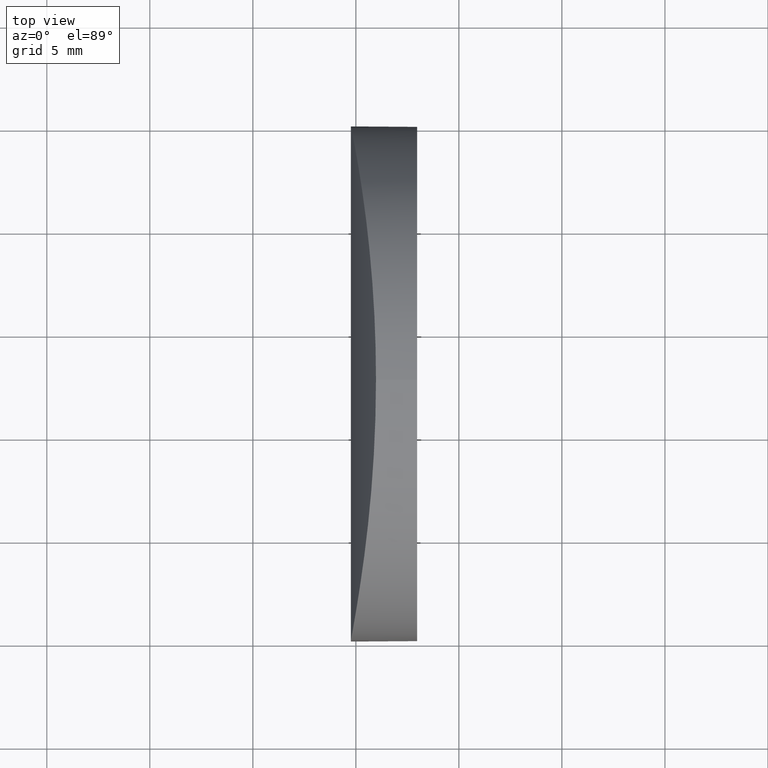
[diagram: clean part render]
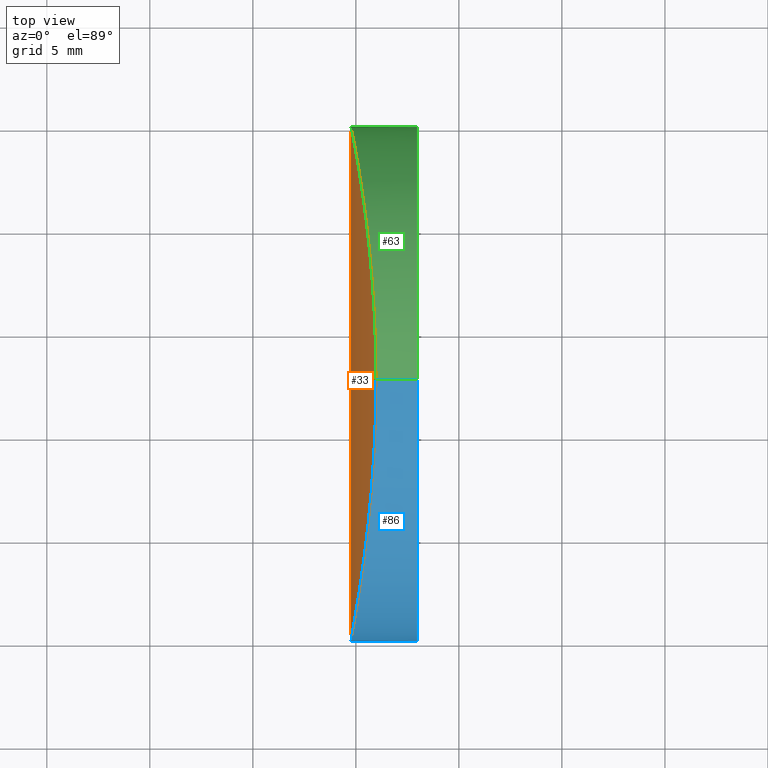
[diagram: same view with three faces highlighted in distinct colors, each labeled with its STEP entity id]
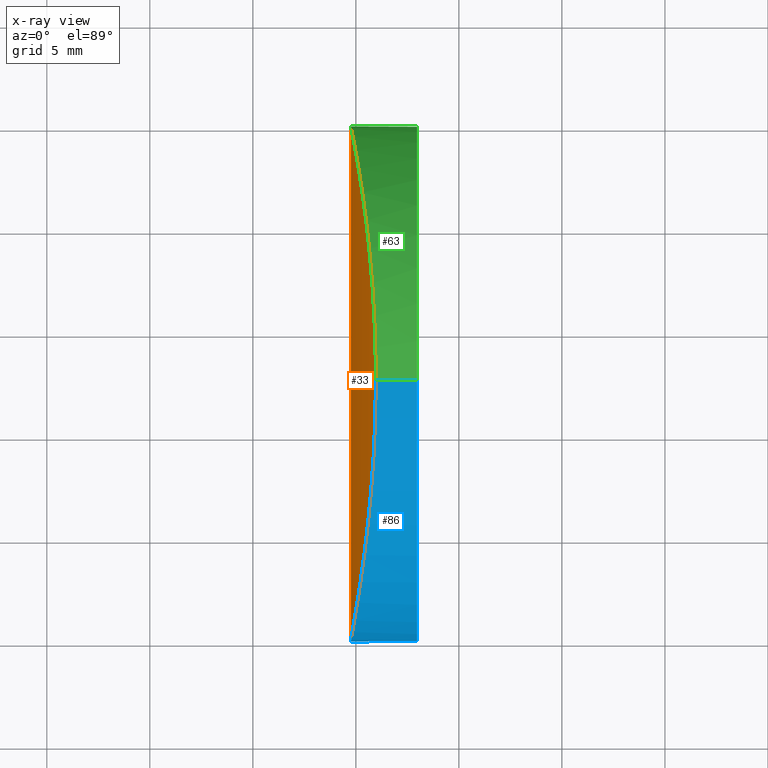
[diagram: x-ray of the same camera — body ghosted, the three highlighted faces saturated]
A machine part, top view with three faces highlighted in distinct colors.
The next image is the same camera in x-ray (body ghosted, the three faces saturated) — at least one of them is partly hidden behind the body in this view.
Their STEP definitions:

[orange] entity #33 — the highlighted cylindrical surface (partial cylindrical patch) has radius 64.6 mm, axis along (-0, -1, -0).
#1 = CARTESIAN_POINT ( 'NONE',  ( -59.02389316582319600, 12.50000000000000200, 12.50000000000002100 ) ) ;
#2 = CARTESIAN_POINT ( 'NONE',  ( -59.26164959724778200, 6.953611480355411000, 11.23198719066334800 ) ) ;
#3 = CARTESIAN_POINT ( 'NONE',  ( -60.11944846965648300, 24.33573582276013500, -4.041388824887324200 ) ) ;
#7 = CARTESIAN_POINT ( 'NONE',  ( -59.17619296434610700, 16.91254268337160500, -11.70243442865199900 ) ) ;
#8 = CARTESIAN_POINT ( 'NONE',  ( -60.03817596153278700, 1.114876474704032900, 5.176325032583973100 ) ) ;
#9 = CARTESIAN_POINT ( 'NONE',  ( -59.94407343671728200, 1.651636491775956100, -6.263268349582078000 ) ) ;
#11 = CARTESIAN_POINT ( 'NONE',  ( -59.47903460143966500, 20.13935892838517100, 9.927955759713373900 ) ) ;
#14 = CARTESIAN_POINT ( 'NONE',  ( -59.26485897689801900, 6.956468959465655500, -11.21096781825311500 ) ) ;
#17 = CYLINDRICAL_SURFACE ( 'NONE', #205, 64.59999999999999400 ) ;
#18 = CARTESIAN_POINT ( 'NONE',  ( -59.43982938321097700, 5.219202701464058500, 10.16889059154083000 ) ) ;
#19 = CARTESIAN_POINT ( 'NONE',  ( 4.355204334851265500, 25.00000000000000000, 4.286263797015675000E-017 ) ) ;
#22 = CARTESIAN_POINT ( 'NONE',  ( -59.08624132338281500, 15.34018576031863300, -12.17988275755571200 ) ) ;
#23 = CARTESIAN_POINT ( 'NONE',  ( -60.22889218155271600, 0.08143507683078982100, 1.645744187348376700 ) ) ;
#26 = CARTESIAN_POINT ( 'NONE',  ( -59.55821268671425600, 20.76672277575347900, 9.411265892598940800 ) ) ;
#27 = CARTESIAN_POINT ( 'NONE',  ( -59.79509617389217600, 2.572539314640869300, 7.640005664594046800 ) ) ;
#30 = CARTESIAN_POINT ( 'NONE',  ( -60.16489066309263500, 0.4191729244595333000, -3.236084662652401400 ) ) ;
#33 = ADVANCED_FACE ( 'NONE', ( #72 ), #17, .T. ) ;
#36 = CARTESIAN_POINT ( 'NONE',  ( -60.00752717167899400, 23.71103300425527000, -5.543400350769594800 ) ) ;
#38 = CARTESIAN_POINT ( 'NONE',  ( -59.90599332974306900, 23.11331139931109400, -6.616356907377649100 ) ) ;
#39 = CARTESIAN_POINT ( 'NONE',  ( -60.22893120219183100, 0.08126502172796912200, -1.640086051808672200 ) ) ;
#40 = CARTESIAN_POINT ( 'NONE',  ( -59.32906838335388500, 18.76349313735451900, -10.84823006857066700 ) ) ;
#41 = CARTESIAN_POINT ( 'NONE',  ( -59.08698385236373000, 15.35731784322858400, 12.17602328205818200 ) ) ;
#42 = CARTESIAN_POINT ( 'NONE',  ( -60.01072802113013400, 1.267969894251534700, -5.546318056753284200 ) ) ;
#43 = CARTESIAN_POINT ( 'NONE',  ( -59.02389316582319600, 12.50000000000000000, -12.49999999999999100 ) ) ;
#45 = CARTESIAN_POINT ( 'NONE',  ( -59.02389316582319600, 12.50000000000000000, -12.49999999999999100 ) ) ;
#46 = CARTESIAN_POINT ( 'NONE',  ( -59.47906853105255500, 4.860356233346158700, -9.927739286975285200 ) ) ;
#53 = CARTESIAN_POINT ( 'NONE',  ( -59.17618012442847000, 8.087643298529142700, 11.70250395447501300 ) ) ;
#56 = CARTESIAN_POINT ( 'NONE',  ( -60.18356258551960300, 24.67984165027678900, 2.840362378747694400 ) ) ;
#57 = CARTESIAN_POINT ( 'NONE',  ( -60.16485572860288800, 24.58064066870210600, 3.236778543452844700 ) ) ;
#60 = CARTESIAN_POINT ( 'NONE',  ( -60.24479300500480900, 24.99998625237620300, 0.8276388262333289600 ) ) ;
#62 = CARTESIAN_POINT ( 'NONE',  ( -59.71708165772282900, 3.097124578014087200, -8.246475863451740600 ) ) ;
#65 = CARTESIAN_POINT ( 'NONE',  ( -59.08698931497234200, 9.642558430170865300, -12.17599486852276200 ) ) ;
#67 = CARTESIAN_POINT ( 'NONE',  ( -59.17705707777771100, 16.92475027507529000, 11.69773269603119900 ) ) ;
#69 = CARTESIAN_POINT ( 'NONE',  ( -59.55825093725421500, 4.232981081770735600, -9.411008956112448600 ) ) ;
#72 = FACE_OUTER_BOUND ( 'NONE', #188, .T. ) ;
#74 = CARTESIAN_POINT ( 'NONE',  ( -60.01068056710131800, 23.73175880349485600, 5.546861407868839900 ) ) ;
#75 = CARTESIAN_POINT ( 'NONE',  ( -59.94150713718200800, 23.32557897568036200, -6.262857839095554300 ) ) ;
#77 = CARTESIAN_POINT ( 'NONE',  ( -59.67728742055599900, 21.62857918440507600, 8.548929749514618600 ) ) ;
#78 = CARTESIAN_POINT ( 'NONE',  ( -60.09413917643933400, 0.8025006634820279800, 4.425368662762992700 ) ) ;
#81 = CARTESIAN_POINT ( 'NONE',  ( -59.04009934486558100, 10.85480167256369400, -12.41863985775103500 ) ) ;
#83 = CARTESIAN_POINT ( 'NONE',  ( -59.02389316582319600, 12.50000000000000000, -12.49999999999999100 ) ) ;
#88 = ORIENTED_EDGE ( 'NONE', *, *, #106, .F. ) ;
#89 = CARTESIAN_POINT ( 'NONE',  ( -59.32904415187575600, 6.236755299857104100, 10.84837068349500900 ) ) ;
#90 = CARTESIAN_POINT ( 'NONE',  ( -59.10640975476748300, 15.75869909823105400, 12.07469753511289100 ) ) ;
#93 = CARTESIAN_POINT ( 'NONE',  ( -59.55736558573794100, 20.74655567969248400, -9.402803885974849500 ) ) ;
#95 = CARTESIAN_POINT ( 'NONE',  ( -60.24479832462515800, 25.00001374417403000, -0.8272235077311451700 ) ) ;
#98 = B_SPLINE_CURVE_WITH_KNOTS ( 'NONE', 3,
 ( #43, #195, #178, #22, #160, #111, #7, #117, #40, #128, #206, #93, #222, #176, #223, #38, #75, #36, #113, #151, #3, #145, #171, #172, #95, #60, #187, #56, #57, #202, #226, #74, #207, #114, #209, #186, #77, #26, #11, #173, #126, #175, #228, #67, #101, #90, #41, #147, #124, #204 ),
 .UNSPECIFIED., .F., .F.,
 ( 4, 2, 2, 2, 2, 2, 2, 2, 2, 2, 2, 2, 2, 2, 2, 2, 2, 2, 2, 2, 2, 2, 2, 2, 4 ),
 ( -0.01957284300210787600, -0.01712621204239920400, -0.01590289656254486500, -0.01467958108269052700, -0.01223295012298185300, -0.01100963464312751700, -0.009786319163273181400, -0.007339688203564506000, -0.006116372723710163100, -0.004893057243855822000, -0.003669741764001480800, -0.002446426284147137900, 2.046755615443818200E-007, 0.002446835635270230200, 0.003670151115124569600, 0.004893466594978909000, 0.007340097554687584300, 0.008563413034541920300, 0.009786728514396256200, 0.01223335947410490700, 0.01345667495395923300, 0.01467999043381356500, 0.01590330591366789100, 0.01712662139352222300, 0.01957325235323086100 ),
 .UNSPECIFIED. ) ;
#99 = CARTESIAN_POINT ( 'NONE',  ( -59.94145853789825700, 1.674709511657535200, 6.263355413834357700 ) ) ;
#101 = CARTESIAN_POINT ( 'NONE',  ( -59.15141283404916800, 16.54142068960851100, 11.83572385563627400 ) ) ;
#102 = CARTESIAN_POINT ( 'NONE',  ( -59.10641682828252600, 9.241161355497007800, -12.07466046204918100 ) ) ;
#106 = EDGE_CURVE ( 'NONE', #154, #153, #98, .T. ) ;
#111 = CARTESIAN_POINT ( 'NONE',  ( -59.15019895883130400, 16.52245387774378200, -11.84223258177801700 ) ) ;
#112 = CARTESIAN_POINT ( 'NONE',  ( -59.71622068741341800, 3.089276266438085700, 8.267337186666022600 ) ) ;
#113 = CARTESIAN_POINT ( 'NONE',  ( -60.03822180502674400, 23.88538264448936100, -5.175756497675725300 ) ) ;
#114 = CARTESIAN_POINT ( 'NONE',  ( -59.83403465504100200, 22.66849899389092500, 7.281345692123340800 ) ) ;
#115 = CARTESIAN_POINT ( 'NONE',  ( -60.24478715804387000, 4.396471807214345500E-005, 0.8280559489329982800 ) ) ;
#116 = CARTESIAN_POINT ( 'NONE',  ( -59.02389316582319600, 12.50000000000000200, 12.50000000000002100 ) ) ;
#117 = CARTESIAN_POINT ( 'NONE',  ( -59.26166893600702700, 18.04661386224991300, -11.23187841017705900 ) ) ;
#118 = CARTESIAN_POINT ( 'NONE',  ( -59.79555920829225400, 2.576457434187529000, -7.611946749182298100 ) ) ;
#119 = CARTESIAN_POINT ( 'NONE',  ( -59.33157884659645700, 6.237042822506981400, -10.82552092105334300 ) ) ;
#121 = B_SPLINE_CURVE_WITH_KNOTS ( 'NONE', 3,
 ( #116, #136, #158, #191, #193, #184, #53, #2, #89, #18, #150, #166, #168, #112, #27, #220, #99, #224, #8, #78, #190, #208, #156, #23, #115, #180, #39, #221, #30, #137, #197, #42, #9, #135, #118, #62, #174, #69, #46, #161, #119, #14, #229, #210, #227, #102, #65, #81, #194, #45 ),
 .UNSPECIFIED., .F., .F.,
 ( 4, 2, 2, 2, 2, 2, 2, 2, 2, 2, 2, 2, 2, 2, 2, 2, 2, 2, 2, 2, 2, 2, 2, 2, 4 ),
 ( 0.01957325235323086100, 0.02201988331417333000, 0.02324319879464456500, 0.02446651427511579600, 0.02691314523605826300, 0.02813646071652949700, 0.02935977619700072500, 0.03180640715794319500, 0.03302972263841443000, 0.03425303811888566500, 0.03547635359935690000, 0.03669966907982813400, 0.03914630004077060400, 0.04159293100171307400, 0.04281624648218430900, 0.04403956196265554300, 0.04648619292359801300, 0.04770950840406924800, 0.04893282388454049000, 0.05137945484548295900, 0.05260277032595419400, 0.05382608580642542200, 0.05504940128689665700, 0.05627271676736788500, 0.05871934772831034800 ),
 .UNSPECIFIED. ) ;
#124 = CARTESIAN_POINT ( 'NONE',  ( -59.02389316582317500, 13.32742043918405300, 12.50000000000002000 ) ) ;
#126 = CARTESIAN_POINT ( 'NONE',  ( -59.33155441535485200, 18.76270804238500000, 10.82566434749256800 ) ) ;
#128 = CARTESIAN_POINT ( 'NONE',  ( -59.43986103198155700, 19.78107504543206100, -10.16869247535632300 ) ) ;
#134 = EDGE_CURVE ( 'NONE', #153, #154, #121, .T. ) ;
#135 = CARTESIAN_POINT ( 'NONE',  ( -59.83408278774626200, 2.331197291589496100, -7.280922454180103600 ) ) ;
#136 = CARTESIAN_POINT ( 'NONE',  ( -59.02389316582316800, 11.67257956039870600, 12.50000000000002100 ) ) ;
#137 = CARTESIAN_POINT ( 'NONE',  ( -60.12067069864304600, 0.6576106456432886400, -4.021994673390871400 ) ) ;
#145 = CARTESIAN_POINT ( 'NONE',  ( -60.16374765388364700, 24.57472376201736700, -3.258605863105390900 ) ) ;
#147 = CARTESIAN_POINT ( 'NONE',  ( -59.04009792182660700, 14.14512653509005900, 12.41864693005492100 ) ) ;
#150 = CARTESIAN_POINT ( 'NONE',  ( -59.47856730113642200, 4.888200919920225700, 9.923653712715315900 ) ) ;
#151 = CARTESIAN_POINT ( 'NONE',  ( -60.09418175806383300, 24.19773378407774400, -4.424750569412742300 ) ) ;
#152 = DIRECTION ( 'NONE',  ( -0.0000000000000000000, -1.000000000000000000, -0.0000000000000000000 ) ) ;
#153 = VERTEX_POINT ( 'NONE', #1 ) ;
#154 = VERTEX_POINT ( 'NONE', #83 ) ;
#156 = CARTESIAN_POINT ( 'NONE',  ( -60.18281387197630700, 0.3241180178804800600, 2.857919720318844400 ) ) ;
#158 = CARTESIAN_POINT ( 'NONE',  ( -59.04008873536895400, 10.85937780113419400, 12.41865921652271300 ) ) ;
#160 = CARTESIAN_POINT ( 'NONE',  ( -59.10526902189033600, 15.73659796190666100, -12.08068877806570100 ) ) ;
#161 = CARTESIAN_POINT ( 'NONE',  ( -59.36741644079558700, 5.883555361255106100, -10.61325592833345000 ) ) ;
#166 = CARTESIAN_POINT ( 'NONE',  ( -59.55732728569592600, 4.253741326667005200, 9.403063657014778100 ) ) ;
#168 = CARTESIAN_POINT ( 'NONE',  ( -59.59714868338141300, 3.951636953773504300, 9.129109242788896200 ) ) ;
#171 = CARTESIAN_POINT ( 'NONE',  ( -60.18284606520861500, 24.67605248331538400, -2.857195541869812500 ) ) ;
#172 = CARTESIAN_POINT ( 'NONE',  ( -60.22891272762355900, 24.91867123659324100, -1.644957896463460100 ) ) ;
#173 = CARTESIAN_POINT ( 'NONE',  ( -59.36738930045309100, 19.11618286290802300, 10.61341848442072900 ) ) ;
#174 = CARTESIAN_POINT ( 'NONE',  ( -59.67733101495247200, 3.371114932939534000, -8.548603995623940600 ) ) ;
#175 = CARTESIAN_POINT ( 'NONE',  ( -59.26483948195200900, 18.04330651950282800, 11.21107815598317700 ) ) ;
#176 = CARTESIAN_POINT ( 'NONE',  ( -59.71626580244925700, 21.91103114047125900, -8.266990626245096500 ) ) ;
#178 = CARTESIAN_POINT ( 'NONE',  ( -59.04009015689865700, 14.14069359768780200, -12.41865214434263000 ) ) ;
#180 = CARTESIAN_POINT ( 'NONE',  ( -60.24480416542983400, -4.392945278913806500E-005, -0.8267280691344890400 ) ) ;
#184 = CARTESIAN_POINT ( 'NONE',  ( -59.15018819402147400, 8.477717661986865500, 11.84229019971014900 ) ) ;
#186 = CARTESIAN_POINT ( 'NONE',  ( -59.71703647261325900, 21.90256750908488200, 8.246825925460731500 ) ) ;
#187 = CARTESIAN_POINT ( 'NONE',  ( -60.22891083849919600, 24.91862958703648100, 1.640866677604470200 ) ) ;
#188 = EDGE_LOOP ( 'NONE', ( #88, #212 ) ) ;
#190 = CARTESIAN_POINT ( 'NONE',  ( -60.11940796590752700, 0.6644846656491145700, 4.042032414635014200 ) ) ;
#191 = CARTESIAN_POINT ( 'NONE',  ( -59.08623595743738100, 9.659936480445573200, 12.17991066013131500 ) ) ;
#193 = CARTESIAN_POINT ( 'NONE',  ( -59.10526203895474900, 9.263540925417070000, 12.08072535236992100 ) ) ;
#194 = CARTESIAN_POINT ( 'NONE',  ( -59.02389316582318200, 11.67254324223213900, -12.49999999999999100 ) ) ;
#195 = CARTESIAN_POINT ( 'NONE',  ( -59.02389316582320300, 13.32745675735058700, -12.49999999999999300 ) ) ;
#197 = CARTESIAN_POINT ( 'NONE',  ( -60.09506237965197100, 0.7974065852469672800, -4.412124594767902900 ) ) ;
#202 = CARTESIAN_POINT ( 'NONE',  ( -60.12062993158355800, 24.34216756879143500, 4.022646091606922000 ) ) ;
#204 = CARTESIAN_POINT ( 'NONE',  ( -59.02389316582319600, 12.50000000000000200, 12.50000000000002100 ) ) ;
#205 = AXIS2_PLACEMENT_3D ( 'NONE', #19, #152, #225 ) ;
#206 = CARTESIAN_POINT ( 'NONE',  ( -59.47860159816619300, 20.11208687668492300, -9.923433623407440500 ) ) ;
#207 = CARTESIAN_POINT ( 'NONE',  ( -59.94402486853996900, 23.34807609206640000, 6.263761857589341500 ) ) ;
#208 = CARTESIAN_POINT ( 'NONE',  ( -60.16371232278088900, 0.4254648714336842200, 3.259302179858921500 ) ) ;
#209 = CARTESIAN_POINT ( 'NONE',  ( -59.79551139081047500, 22.42323343411003800, 7.612348640197094300 ) ) ;
#210 = CARTESIAN_POINT ( 'NONE',  ( -59.17706981660376200, 8.075065670061256600, -11.69766369144791100 ) ) ;
#212 = ORIENTED_EDGE ( 'NONE', *, *, #134, .F. ) ;
#220 = CARTESIAN_POINT ( 'NONE',  ( -59.90594415187612000, 1.886986294763315400, 6.616833128170423400 ) ) ;
#221 = CARTESIAN_POINT ( 'NONE',  ( -60.18359419817183900, 0.3199909714936909300, -2.839647028237571200 ) ) ;
#222 = CARTESIAN_POINT ( 'NONE',  ( -59.59718884254881700, 21.04866355109098900, -9.128828609169104900 ) ) ;
#223 = CARTESIAN_POINT ( 'NONE',  ( -59.79514377863137800, 22.42776799505963600, -7.639610786844609300 ) ) ;
#224 = CARTESIAN_POINT ( 'NONE',  ( -60.00748014451824000, 1.289236824557137500, 5.543944824864349000 ) ) ;
#225 = DIRECTION ( 'NONE',  ( 0.0000000000000000000, 0.0000000000000000000, -1.000000000000000000 ) ) ;
#226 = CARTESIAN_POINT ( 'NONE',  ( -60.09501947481280800, 24.20235727398157600, 4.412748979557737700 ) ) ;
#227 = CARTESIAN_POINT ( 'NONE',  ( -59.15142353904541700, 8.458409648246133700, -11.83566652171688500 ) ) ;
#228 = CARTESIAN_POINT ( 'NONE',  ( -59.23376976352186300, 17.67569335236540000, 11.38541011763989600 ) ) ;
#229 = CARTESIAN_POINT ( 'NONE',  ( -59.23378689718531800, 7.324095163485362800, -11.38531461075334600 ) ) ;

[blue] entity #86 — the highlighted cylindrical surface (partial cylindrical patch) has radius 12.5 mm, axis along (1, -0, -0).
#1 = CARTESIAN_POINT ( 'NONE',  ( -59.02389316582319600, 12.50000000000000200, 12.50000000000002100 ) ) ;
#2 = CARTESIAN_POINT ( 'NONE',  ( -59.26164959724778200, 6.953611480355411000, 11.23198719066334800 ) ) ;
#8 = CARTESIAN_POINT ( 'NONE',  ( -60.03817596153278700, 1.114876474704032900, 5.176325032583973100 ) ) ;
#9 = CARTESIAN_POINT ( 'NONE',  ( -59.94407343671728200, 1.651636491775956100, -6.263268349582078000 ) ) ;
#12 = CIRCLE ( 'NONE', #94, 12.50000000000000500 ) ;
#13 = EDGE_CURVE ( 'NONE', #32, #105, #12, .T. ) ;
#14 = CARTESIAN_POINT ( 'NONE',  ( -59.26485897689801900, 6.956468959465655500, -11.21096781825311500 ) ) ;
#18 = CARTESIAN_POINT ( 'NONE',  ( -59.43982938321097700, 5.219202701464058500, 10.16889059154083000 ) ) ;
#21 = ORIENTED_EDGE ( 'NONE', *, *, #157, .F. ) ;
#23 = CARTESIAN_POINT ( 'NONE',  ( -60.22889218155271600, 0.08143507683078982100, 1.645744187348376700 ) ) ;
#27 = CARTESIAN_POINT ( 'NONE',  ( -59.79509617389217600, 2.572539314640869300, 7.640005664594046800 ) ) ;
#30 = CARTESIAN_POINT ( 'NONE',  ( -60.16489066309263500, 0.4191729244595333000, -3.236084662652401400 ) ) ;
#32 = VERTEX_POINT ( 'NONE', #211 ) ;
#34 = DIRECTION ( 'NONE',  ( 1.000000000000000000, -2.465190328815661900E-032, -2.510324564891253900E-016 ) ) ;
#39 = CARTESIAN_POINT ( 'NONE',  ( -60.22893120219183100, 0.08126502172796912200, -1.640086051808672200 ) ) ;
#42 = CARTESIAN_POINT ( 'NONE',  ( -60.01072802113013400, 1.267969894251534700, -5.546318056753284200 ) ) ;
#45 = CARTESIAN_POINT ( 'NONE',  ( -59.02389316582319600, 12.50000000000000000, -12.49999999999999100 ) ) ;
#46 = CARTESIAN_POINT ( 'NONE',  ( -59.47906853105255500, 4.860356233346158700, -9.927739286975285200 ) ) ;
#47 = AXIS2_PLACEMENT_3D ( 'NONE', #92, #131, #110 ) ;
#53 = CARTESIAN_POINT ( 'NONE',  ( -59.17618012442847000, 8.087643298529142700, 11.70250395447501300 ) ) ;
#55 = EDGE_CURVE ( 'NONE', #154, #105, #199, .T. ) ;
#62 = CARTESIAN_POINT ( 'NONE',  ( -59.71708165772282900, 3.097124578014087200, -8.246475863451740600 ) ) ;
#65 = CARTESIAN_POINT ( 'NONE',  ( -59.08698931497234200, 9.642558430170865300, -12.17599486852276200 ) ) ;
#69 = CARTESIAN_POINT ( 'NONE',  ( -59.55825093725421500, 4.232981081770735600, -9.411008956112448600 ) ) ;
#70 = EDGE_LOOP ( 'NONE', ( #21, #132, #79, #159 ) ) ;
#71 = VECTOR ( 'NONE', #91, 1000.000000000000000 ) ;
#76 = CARTESIAN_POINT ( 'NONE',  ( -69.72479566514871900, 12.50000000000000200, 12.50000000000002500 ) ) ;
#78 = CARTESIAN_POINT ( 'NONE',  ( -60.09413917643933400, 0.8025006634820279800, 4.425368662762992700 ) ) ;
#79 = ORIENTED_EDGE ( 'NONE', *, *, #55, .T. ) ;
#80 = CARTESIAN_POINT ( 'NONE',  ( -57.02479566514872300, 12.50000000000000000, 1.582756028049823600E-014 ) ) ;
#81 = CARTESIAN_POINT ( 'NONE',  ( -59.04009934486558100, 10.85480167256369400, -12.41863985775103500 ) ) ;
#83 = CARTESIAN_POINT ( 'NONE',  ( -59.02389316582319600, 12.50000000000000000, -12.49999999999999100 ) ) ;
#86 = ADVANCED_FACE ( 'NONE', ( #162 ), #107, .T. ) ;
#89 = CARTESIAN_POINT ( 'NONE',  ( -59.32904415187575600, 6.236755299857104100, 10.84837068349500900 ) ) ;
#91 = DIRECTION ( 'NONE',  ( 1.000000000000000000, -0.0000000000000000000, -2.775557561562888400E-016 ) ) ;
#92 = CARTESIAN_POINT ( 'NONE',  ( -69.72479566514871900, 12.50000000000000000, 1.935251838368310500E-014 ) ) ;
#94 = AXIS2_PLACEMENT_3D ( 'NONE', #80, #34, #103 ) ;
#99 = CARTESIAN_POINT ( 'NONE',  ( -59.94145853789825700, 1.674709511657535200, 6.263355413834357700 ) ) ;
#102 = CARTESIAN_POINT ( 'NONE',  ( -59.10641682828252600, 9.241161355497007800, -12.07466046204918100 ) ) ;
#103 = DIRECTION ( 'NONE',  ( 0.0000000000000000000, 0.0000000000000000000, -1.000000000000000000 ) ) ;
#105 = VERTEX_POINT ( 'NONE', #167 ) ;
#107 = CYLINDRICAL_SURFACE ( 'NONE', #47, 12.50000000000000500 ) ;
#110 = DIRECTION ( 'NONE',  ( 0.0000000000000000000, 0.0000000000000000000, -1.000000000000000000 ) ) ;
#112 = CARTESIAN_POINT ( 'NONE',  ( -59.71622068741341800, 3.089276266438085700, 8.267337186666022600 ) ) ;
#115 = CARTESIAN_POINT ( 'NONE',  ( -60.24478715804387000, 4.396471807214345500E-005, 0.8280559489329982800 ) ) ;
#116 = CARTESIAN_POINT ( 'NONE',  ( -59.02389316582319600, 12.50000000000000200, 12.50000000000002100 ) ) ;
#118 = CARTESIAN_POINT ( 'NONE',  ( -59.79555920829225400, 2.576457434187529000, -7.611946749182298100 ) ) ;
#119 = CARTESIAN_POINT ( 'NONE',  ( -59.33157884659645700, 6.237042822506981400, -10.82552092105334300 ) ) ;
#121 = B_SPLINE_CURVE_WITH_KNOTS ( 'NONE', 3,
 ( #116, #136, #158, #191, #193, #184, #53, #2, #89, #18, #150, #166, #168, #112, #27, #220, #99, #224, #8, #78, #190, #208, #156, #23, #115, #180, #39, #221, #30, #137, #197, #42, #9, #135, #118, #62, #174, #69, #46, #161, #119, #14, #229, #210, #227, #102, #65, #81, #194, #45 ),
 .UNSPECIFIED., .F., .F.,
 ( 4, 2, 2, 2, 2, 2, 2, 2, 2, 2, 2, 2, 2, 2, 2, 2, 2, 2, 2, 2, 2, 2, 2, 2, 4 ),
 ( 0.01957325235323086100, 0.02201988331417333000, 0.02324319879464456500, 0.02446651427511579600, 0.02691314523605826300, 0.02813646071652949700, 0.02935977619700072500, 0.03180640715794319500, 0.03302972263841443000, 0.03425303811888566500, 0.03547635359935690000, 0.03669966907982813400, 0.03914630004077060400, 0.04159293100171307400, 0.04281624648218430900, 0.04403956196265554300, 0.04648619292359801300, 0.04770950840406924800, 0.04893282388454049000, 0.05137945484548295900, 0.05260277032595419400, 0.05382608580642542200, 0.05504940128689665700, 0.05627271676736788500, 0.05871934772831034800 ),
 .UNSPECIFIED. ) ;
#123 = LINE ( 'NONE', #76, #218 ) ;
#131 = DIRECTION ( 'NONE',  ( 1.000000000000000000, -0.0000000000000000000, -2.775557561562888400E-016 ) ) ;
#132 = ORIENTED_EDGE ( 'NONE', *, *, #134, .T. ) ;
#134 = EDGE_CURVE ( 'NONE', #153, #154, #121, .T. ) ;
#135 = CARTESIAN_POINT ( 'NONE',  ( -59.83408278774626200, 2.331197291589496100, -7.280922454180103600 ) ) ;
#136 = CARTESIAN_POINT ( 'NONE',  ( -59.02389316582316800, 11.67257956039870600, 12.50000000000002100 ) ) ;
#137 = CARTESIAN_POINT ( 'NONE',  ( -60.12067069864304600, 0.6576106456432886400, -4.021994673390871400 ) ) ;
#150 = CARTESIAN_POINT ( 'NONE',  ( -59.47856730113642200, 4.888200919920225700, 9.923653712715315900 ) ) ;
#153 = VERTEX_POINT ( 'NONE', #1 ) ;
#154 = VERTEX_POINT ( 'NONE', #83 ) ;
#155 = CARTESIAN_POINT ( 'NONE',  ( -69.72479566514871900, 12.50000000000000000, -12.49999999999998800 ) ) ;
#156 = CARTESIAN_POINT ( 'NONE',  ( -60.18281387197630700, 0.3241180178804800600, 2.857919720318844400 ) ) ;
#157 = EDGE_CURVE ( 'NONE', #153, #32, #123, .T. ) ;
#158 = CARTESIAN_POINT ( 'NONE',  ( -59.04008873536895400, 10.85937780113419400, 12.41865921652271300 ) ) ;
#159 = ORIENTED_EDGE ( 'NONE', *, *, #13, .F. ) ;
#161 = CARTESIAN_POINT ( 'NONE',  ( -59.36741644079558700, 5.883555361255106100, -10.61325592833345000 ) ) ;
#162 = FACE_OUTER_BOUND ( 'NONE', #70, .T. ) ;
#166 = CARTESIAN_POINT ( 'NONE',  ( -59.55732728569592600, 4.253741326667005200, 9.403063657014778100 ) ) ;
#167 = CARTESIAN_POINT ( 'NONE',  ( -57.02479566514872300, 12.50000000000000000, -12.49999999999999100 ) ) ;
#168 = CARTESIAN_POINT ( 'NONE',  ( -59.59714868338141300, 3.951636953773504300, 9.129109242788896200 ) ) ;
#174 = CARTESIAN_POINT ( 'NONE',  ( -59.67733101495247200, 3.371114932939534000, -8.548603995623940600 ) ) ;
#180 = CARTESIAN_POINT ( 'NONE',  ( -60.24480416542983400, -4.392945278913806500E-005, -0.8267280691344890400 ) ) ;
#184 = CARTESIAN_POINT ( 'NONE',  ( -59.15018819402147400, 8.477717661986865500, 11.84229019971014900 ) ) ;
#190 = CARTESIAN_POINT ( 'NONE',  ( -60.11940796590752700, 0.6644846656491145700, 4.042032414635014200 ) ) ;
#191 = CARTESIAN_POINT ( 'NONE',  ( -59.08623595743738100, 9.659936480445573200, 12.17991066013131500 ) ) ;
#193 = CARTESIAN_POINT ( 'NONE',  ( -59.10526203895474900, 9.263540925417070000, 12.08072535236992100 ) ) ;
#194 = CARTESIAN_POINT ( 'NONE',  ( -59.02389316582318200, 11.67254324223213900, -12.49999999999999100 ) ) ;
#196 = DIRECTION ( 'NONE',  ( 1.000000000000000000, -0.0000000000000000000, -2.775557561562888400E-016 ) ) ;
#197 = CARTESIAN_POINT ( 'NONE',  ( -60.09506237965197100, 0.7974065852469672800, -4.412124594767902900 ) ) ;
#199 = LINE ( 'NONE', #155, #71 ) ;
#208 = CARTESIAN_POINT ( 'NONE',  ( -60.16371232278088900, 0.4254648714336842200, 3.259302179858921500 ) ) ;
#210 = CARTESIAN_POINT ( 'NONE',  ( -59.17706981660376200, 8.075065670061256600, -11.69766369144791100 ) ) ;
#211 = CARTESIAN_POINT ( 'NONE',  ( -57.02479566514872300, 12.50000000000000200, 12.50000000000002100 ) ) ;
#218 = VECTOR ( 'NONE', #196, 1000.000000000000000 ) ;
#220 = CARTESIAN_POINT ( 'NONE',  ( -59.90594415187612000, 1.886986294763315400, 6.616833128170423400 ) ) ;
#221 = CARTESIAN_POINT ( 'NONE',  ( -60.18359419817183900, 0.3199909714936909300, -2.839647028237571200 ) ) ;
#224 = CARTESIAN_POINT ( 'NONE',  ( -60.00748014451824000, 1.289236824557137500, 5.543944824864349000 ) ) ;
#227 = CARTESIAN_POINT ( 'NONE',  ( -59.15142353904541700, 8.458409648246133700, -11.83566652171688500 ) ) ;
#229 = CARTESIAN_POINT ( 'NONE',  ( -59.23378689718531800, 7.324095163485362800, -11.38531461075334600 ) ) ;

[green] entity #63 — the highlighted cylindrical surface (partial cylindrical patch) has radius 12.5 mm, axis along (1, -0, -0).
#1 = CARTESIAN_POINT ( 'NONE',  ( -59.02389316582319600, 12.50000000000000200, 12.50000000000002100 ) ) ;
#3 = CARTESIAN_POINT ( 'NONE',  ( -60.11944846965648300, 24.33573582276013500, -4.041388824887324200 ) ) ;
#5 = DIRECTION ( 'NONE',  ( 1.000000000000000000, -2.465190328815661900E-032, -2.510324564891253900E-016 ) ) ;
#7 = CARTESIAN_POINT ( 'NONE',  ( -59.17619296434610700, 16.91254268337160500, -11.70243442865199900 ) ) ;
#11 = CARTESIAN_POINT ( 'NONE',  ( -59.47903460143966500, 20.13935892838517100, 9.927955759713373900 ) ) ;
#22 = CARTESIAN_POINT ( 'NONE',  ( -59.08624132338281500, 15.34018576031863300, -12.17988275755571200 ) ) ;
#26 = CARTESIAN_POINT ( 'NONE',  ( -59.55821268671425600, 20.76672277575347900, 9.411265892598940800 ) ) ;
#29 = ORIENTED_EDGE ( 'NONE', *, *, #157, .T. ) ;
#32 = VERTEX_POINT ( 'NONE', #211 ) ;
#35 = AXIS2_PLACEMENT_3D ( 'NONE', #68, #5, #84 ) ;
#36 = CARTESIAN_POINT ( 'NONE',  ( -60.00752717167899400, 23.71103300425527000, -5.543400350769594800 ) ) ;
#38 = CARTESIAN_POINT ( 'NONE',  ( -59.90599332974306900, 23.11331139931109400, -6.616356907377649100 ) ) ;
#40 = CARTESIAN_POINT ( 'NONE',  ( -59.32906838335388500, 18.76349313735451900, -10.84823006857066700 ) ) ;
#41 = CARTESIAN_POINT ( 'NONE',  ( -59.08698385236373000, 15.35731784322858400, 12.17602328205818200 ) ) ;
#43 = CARTESIAN_POINT ( 'NONE',  ( -59.02389316582319600, 12.50000000000000000, -12.49999999999999100 ) ) ;
#55 = EDGE_CURVE ( 'NONE', #154, #105, #199, .T. ) ;
#56 = CARTESIAN_POINT ( 'NONE',  ( -60.18356258551960300, 24.67984165027678900, 2.840362378747694400 ) ) ;
#57 = CARTESIAN_POINT ( 'NONE',  ( -60.16485572860288800, 24.58064066870210600, 3.236778543452844700 ) ) ;
#59 = ORIENTED_EDGE ( 'NONE', *, *, #106, .T. ) ;
#60 = CARTESIAN_POINT ( 'NONE',  ( -60.24479300500480900, 24.99998625237620300, 0.8276388262333289600 ) ) ;
#61 = CARTESIAN_POINT ( 'NONE',  ( -69.72479566514871900, 12.50000000000000000, 1.935251838368310500E-014 ) ) ;
#63 = ADVANCED_FACE ( 'NONE', ( #189 ), #141, .T. ) ;
#67 = CARTESIAN_POINT ( 'NONE',  ( -59.17705707777771100, 16.92475027507529000, 11.69773269603119900 ) ) ;
#68 = CARTESIAN_POINT ( 'NONE',  ( -57.02479566514872300, 12.50000000000000000, 1.582756028049823600E-014 ) ) ;
#71 = VECTOR ( 'NONE', #91, 1000.000000000000000 ) ;
#74 = CARTESIAN_POINT ( 'NONE',  ( -60.01068056710131800, 23.73175880349485600, 5.546861407868839900 ) ) ;
#75 = CARTESIAN_POINT ( 'NONE',  ( -59.94150713718200800, 23.32557897568036200, -6.262857839095554300 ) ) ;
#76 = CARTESIAN_POINT ( 'NONE',  ( -69.72479566514871900, 12.50000000000000200, 12.50000000000002500 ) ) ;
#77 = CARTESIAN_POINT ( 'NONE',  ( -59.67728742055599900, 21.62857918440507600, 8.548929749514618600 ) ) ;
#82 = DIRECTION ( 'NONE',  ( 0.0000000000000000000, 0.0000000000000000000, -1.000000000000000000 ) ) ;
#83 = CARTESIAN_POINT ( 'NONE',  ( -59.02389316582319600, 12.50000000000000000, -12.49999999999999100 ) ) ;
#84 = DIRECTION ( 'NONE',  ( 0.0000000000000000000, 0.0000000000000000000, -1.000000000000000000 ) ) ;
#90 = CARTESIAN_POINT ( 'NONE',  ( -59.10640975476748300, 15.75869909823105400, 12.07469753511289100 ) ) ;
#91 = DIRECTION ( 'NONE',  ( 1.000000000000000000, -0.0000000000000000000, -2.775557561562888400E-016 ) ) ;
#93 = CARTESIAN_POINT ( 'NONE',  ( -59.55736558573794100, 20.74655567969248400, -9.402803885974849500 ) ) ;
#95 = CARTESIAN_POINT ( 'NONE',  ( -60.24479832462515800, 25.00001374417403000, -0.8272235077311451700 ) ) ;
#98 = B_SPLINE_CURVE_WITH_KNOTS ( 'NONE', 3,
 ( #43, #195, #178, #22, #160, #111, #7, #117, #40, #128, #206, #93, #222, #176, #223, #38, #75, #36, #113, #151, #3, #145, #171, #172, #95, #60, #187, #56, #57, #202, #226, #74, #207, #114, #209, #186, #77, #26, #11, #173, #126, #175, #228, #67, #101, #90, #41, #147, #124, #204 ),
 .UNSPECIFIED., .F., .F.,
 ( 4, 2, 2, 2, 2, 2, 2, 2, 2, 2, 2, 2, 2, 2, 2, 2, 2, 2, 2, 2, 2, 2, 2, 2, 4 ),
 ( -0.01957284300210787600, -0.01712621204239920400, -0.01590289656254486500, -0.01467958108269052700, -0.01223295012298185300, -0.01100963464312751700, -0.009786319163273181400, -0.007339688203564506000, -0.006116372723710163100, -0.004893057243855822000, -0.003669741764001480800, -0.002446426284147137900, 2.046755615443818200E-007, 0.002446835635270230200, 0.003670151115124569600, 0.004893466594978909000, 0.007340097554687584300, 0.008563413034541920300, 0.009786728514396256200, 0.01223335947410490700, 0.01345667495395923300, 0.01467999043381356500, 0.01590330591366789100, 0.01712662139352222300, 0.01957325235323086100 ),
 .UNSPECIFIED. ) ;
#101 = CARTESIAN_POINT ( 'NONE',  ( -59.15141283404916800, 16.54142068960851100, 11.83572385563627400 ) ) ;
#105 = VERTEX_POINT ( 'NONE', #167 ) ;
#106 = EDGE_CURVE ( 'NONE', #154, #153, #98, .T. ) ;
#111 = CARTESIAN_POINT ( 'NONE',  ( -59.15019895883130400, 16.52245387774378200, -11.84223258177801700 ) ) ;
#113 = CARTESIAN_POINT ( 'NONE',  ( -60.03822180502674400, 23.88538264448936100, -5.175756497675725300 ) ) ;
#114 = CARTESIAN_POINT ( 'NONE',  ( -59.83403465504100200, 22.66849899389092500, 7.281345692123340800 ) ) ;
#117 = CARTESIAN_POINT ( 'NONE',  ( -59.26166893600702700, 18.04661386224991300, -11.23187841017705900 ) ) ;
#120 = ORIENTED_EDGE ( 'NONE', *, *, #55, .F. ) ;
#123 = LINE ( 'NONE', #76, #218 ) ;
#124 = CARTESIAN_POINT ( 'NONE',  ( -59.02389316582317500, 13.32742043918405300, 12.50000000000002000 ) ) ;
#126 = CARTESIAN_POINT ( 'NONE',  ( -59.33155441535485200, 18.76270804238500000, 10.82566434749256800 ) ) ;
#128 = CARTESIAN_POINT ( 'NONE',  ( -59.43986103198155700, 19.78107504543206100, -10.16869247535632300 ) ) ;
#139 = CIRCLE ( 'NONE', #35, 12.50000000000000500 ) ;
#141 = CYLINDRICAL_SURFACE ( 'NONE', #169, 12.50000000000000500 ) ;
#145 = CARTESIAN_POINT ( 'NONE',  ( -60.16374765388364700, 24.57472376201736700, -3.258605863105390900 ) ) ;
#147 = CARTESIAN_POINT ( 'NONE',  ( -59.04009792182660700, 14.14512653509005900, 12.41864693005492100 ) ) ;
#151 = CARTESIAN_POINT ( 'NONE',  ( -60.09418175806383300, 24.19773378407774400, -4.424750569412742300 ) ) ;
#153 = VERTEX_POINT ( 'NONE', #1 ) ;
#154 = VERTEX_POINT ( 'NONE', #83 ) ;
#155 = CARTESIAN_POINT ( 'NONE',  ( -69.72479566514871900, 12.50000000000000000, -12.49999999999998800 ) ) ;
#157 = EDGE_CURVE ( 'NONE', #153, #32, #123, .T. ) ;
#160 = CARTESIAN_POINT ( 'NONE',  ( -59.10526902189033600, 15.73659796190666100, -12.08068877806570100 ) ) ;
#167 = CARTESIAN_POINT ( 'NONE',  ( -57.02479566514872300, 12.50000000000000000, -12.49999999999999100 ) ) ;
#169 = AXIS2_PLACEMENT_3D ( 'NONE', #61, #201, #82 ) ;
#171 = CARTESIAN_POINT ( 'NONE',  ( -60.18284606520861500, 24.67605248331538400, -2.857195541869812500 ) ) ;
#172 = CARTESIAN_POINT ( 'NONE',  ( -60.22891272762355900, 24.91867123659324100, -1.644957896463460100 ) ) ;
#173 = CARTESIAN_POINT ( 'NONE',  ( -59.36738930045309100, 19.11618286290802300, 10.61341848442072900 ) ) ;
#175 = CARTESIAN_POINT ( 'NONE',  ( -59.26483948195200900, 18.04330651950282800, 11.21107815598317700 ) ) ;
#176 = CARTESIAN_POINT ( 'NONE',  ( -59.71626580244925700, 21.91103114047125900, -8.266990626245096500 ) ) ;
#178 = CARTESIAN_POINT ( 'NONE',  ( -59.04009015689865700, 14.14069359768780200, -12.41865214434263000 ) ) ;
#183 = EDGE_LOOP ( 'NONE', ( #59, #29, #219, #120 ) ) ;
#186 = CARTESIAN_POINT ( 'NONE',  ( -59.71703647261325900, 21.90256750908488200, 8.246825925460731500 ) ) ;
#187 = CARTESIAN_POINT ( 'NONE',  ( -60.22891083849919600, 24.91862958703648100, 1.640866677604470200 ) ) ;
#189 = FACE_OUTER_BOUND ( 'NONE', #183, .T. ) ;
#195 = CARTESIAN_POINT ( 'NONE',  ( -59.02389316582320300, 13.32745675735058700, -12.49999999999999300 ) ) ;
#196 = DIRECTION ( 'NONE',  ( 1.000000000000000000, -0.0000000000000000000, -2.775557561562888400E-016 ) ) ;
#199 = LINE ( 'NONE', #155, #71 ) ;
#201 = DIRECTION ( 'NONE',  ( 1.000000000000000000, -0.0000000000000000000, -2.775557561562888400E-016 ) ) ;
#202 = CARTESIAN_POINT ( 'NONE',  ( -60.12062993158355800, 24.34216756879143500, 4.022646091606922000 ) ) ;
#204 = CARTESIAN_POINT ( 'NONE',  ( -59.02389316582319600, 12.50000000000000200, 12.50000000000002100 ) ) ;
#206 = CARTESIAN_POINT ( 'NONE',  ( -59.47860159816619300, 20.11208687668492300, -9.923433623407440500 ) ) ;
#207 = CARTESIAN_POINT ( 'NONE',  ( -59.94402486853996900, 23.34807609206640000, 6.263761857589341500 ) ) ;
#209 = CARTESIAN_POINT ( 'NONE',  ( -59.79551139081047500, 22.42323343411003800, 7.612348640197094300 ) ) ;
#211 = CARTESIAN_POINT ( 'NONE',  ( -57.02479566514872300, 12.50000000000000200, 12.50000000000002100 ) ) ;
#218 = VECTOR ( 'NONE', #196, 1000.000000000000000 ) ;
#219 = ORIENTED_EDGE ( 'NONE', *, *, #232, .F. ) ;
#222 = CARTESIAN_POINT ( 'NONE',  ( -59.59718884254881700, 21.04866355109098900, -9.128828609169104900 ) ) ;
#223 = CARTESIAN_POINT ( 'NONE',  ( -59.79514377863137800, 22.42776799505963600, -7.639610786844609300 ) ) ;
#226 = CARTESIAN_POINT ( 'NONE',  ( -60.09501947481280800, 24.20235727398157600, 4.412748979557737700 ) ) ;
#228 = CARTESIAN_POINT ( 'NONE',  ( -59.23376976352186300, 17.67569335236540000, 11.38541011763989600 ) ) ;
#232 = EDGE_CURVE ( 'NONE', #105, #32, #139, .T. ) ;